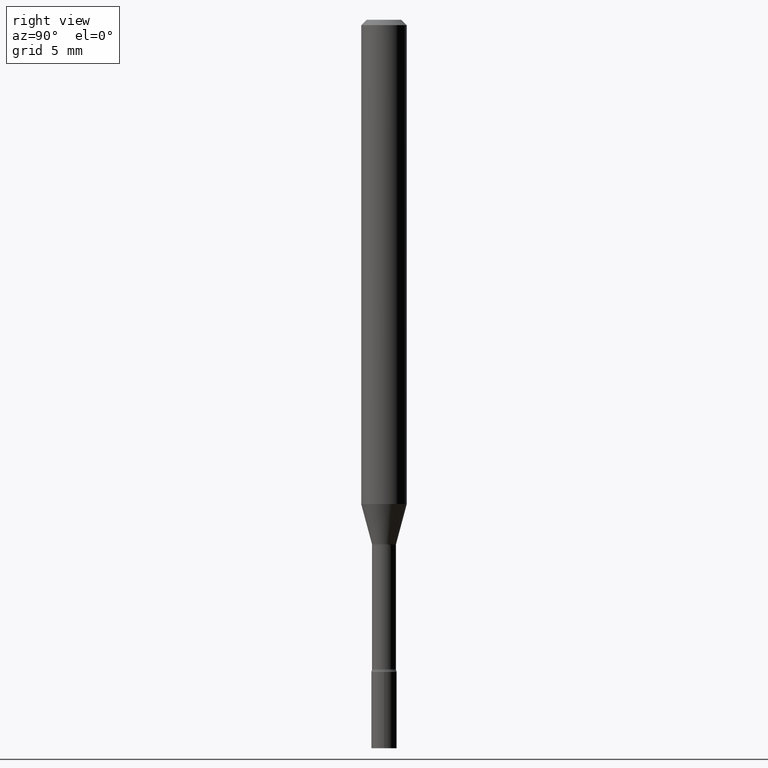
[diagram: clean part render]
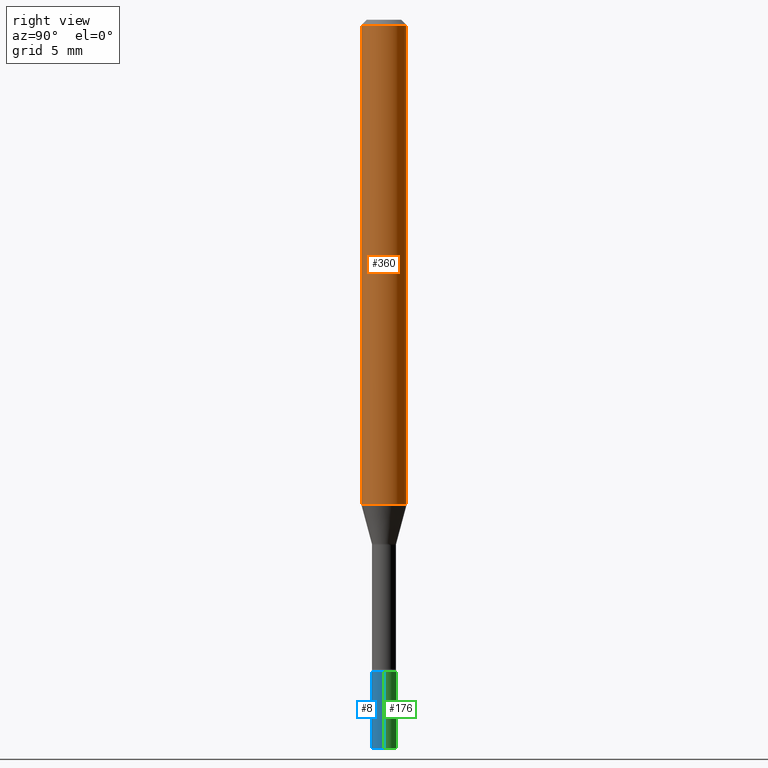
[diagram: same view with three faces highlighted in distinct colors, each labeled with its STEP entity id]
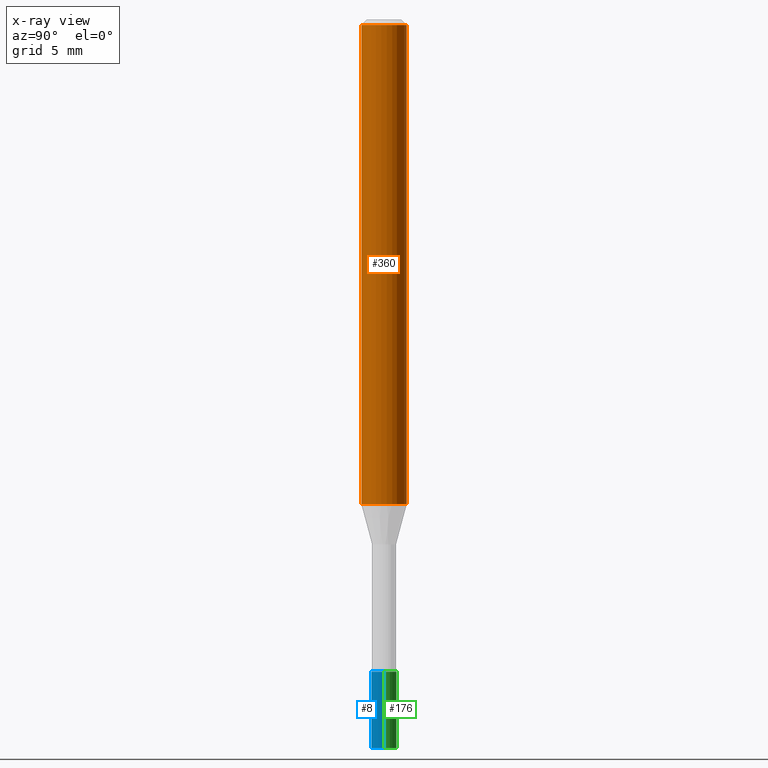
[diagram: x-ray of the same camera — body ghosted, the three highlighted faces saturated]
A machine part, right view with three faces highlighted in distinct colors.
The next image is the same camera in x-ray (body ghosted, the three faces saturated) — at least one of them is partly hidden behind the body in this view.
Their STEP definitions:

[orange] entity #360 — the highlighted cylindrical surface (edge-blend (fillet) strip) has radius 1.5875 mm, axis along (-0, 0, 1).
#19 = ORIENTED_EDGE ( 'NONE', *, *, #252, .T. ) ;
#44 = DIRECTION ( 'NONE',  ( -6.982962677686265922E-15, -1.000000000000000000, 4.370956789862821150E-15 ) ) ;
#52 = CARTESIAN_POINT ( 'NONE',  ( 0.000000000000000000, 0.000000000000000000, 0.000000000000000000 ) ) ;
#60 = ORIENTED_EDGE ( 'NONE', *, *, #254, .F. ) ;
#81 = LINE ( 'NONE', #139, #335 ) ;
#85 = DIRECTION ( 'NONE',  ( -2.445497550844091636E-29, 3.491440174855477289E-15, 1.000000000000000000 ) ) ;
#92 = VERTEX_POINT ( 'NONE', #294 ) ;
#105 = CARTESIAN_POINT ( 'NONE',  ( -4.364351673553912750E-16, -0.06250000000000005551, -0.01499999999999981209 ) ) ;
#106 = VERTEX_POINT ( 'NONE', #105 ) ;
#113 = EDGE_LOOP ( 'NONE', ( #19, #276, #60, #392 ) ) ;
#119 = DIRECTION ( 'NONE',  ( -2.445497550844091636E-29, 3.491440174855477683E-15, 1.000000000000000000 ) ) ;
#128 = CIRCLE ( 'NONE', #136, 0.06250000000000000000 ) ;
#136 = AXIS2_PLACEMENT_3D ( 'NONE', #364, #85, #245 ) ;
#139 = CARTESIAN_POINT ( 'NONE',  ( 4.440892098500625669E-16, 0.06250000000000000000, -2.182150109284673306E-16 ) ) ;
#157 = CYLINDRICAL_SURFACE ( 'NONE', #371, 0.06250000000000000000 ) ;
#161 = AXIS2_PLACEMENT_3D ( 'NONE', #205, #247, #44 ) ;
#179 = VECTOR ( 'NONE', #119, 39.37007874015748143 ) ;
#205 = CARTESIAN_POINT ( 'NONE',  ( 3.251365528373244956E-29, -4.641978980917113845E-15, -1.329531296095961546 ) ) ;
#245 = DIRECTION ( 'NONE',  ( -6.982962677686265922E-15, -1.000000000000000000, 3.483106191921935554E-15 ) ) ;
#247 = DIRECTION ( 'NONE',  ( -2.445497550844091636E-29, 3.491440174855477289E-15, 1.000000000000000000 ) ) ;
#248 = VERTEX_POINT ( 'NONE', #279 ) ;
#252 = EDGE_CURVE ( 'NONE', #499, #92, #422, .T. ) ;
#254 = EDGE_CURVE ( 'NONE', #106, #248, #128, .T. ) ;
#262 = DIRECTION ( 'NONE',  ( -6.982962677686265922E-15, -1.000000000000000000, 3.491440174855477289E-15 ) ) ;
#276 = ORIENTED_EDGE ( 'NONE', *, *, #313, .T. ) ;
#279 = CARTESIAN_POINT ( 'NONE',  ( 4.440892098500952553E-16, 0.06249999999999993755, -0.01500000000000024751 ) ) ;
#294 = CARTESIAN_POINT ( 'NONE',  ( 4.440892098500948609E-16, 0.06249999999999532319, -1.329531296095961768 ) ) ;
#313 = EDGE_CURVE ( 'NONE', #92, #248, #81, .T. ) ;
#320 = LINE ( 'NONE', #470, #179 ) ;
#335 = VECTOR ( 'NONE', #412, 39.37007874015748143 ) ;
#360 = ADVANCED_FACE ( 'NONE', ( #512 ), #157, .T. ) ;
#364 = CARTESIAN_POINT ( 'NONE',  ( 3.668246326266144706E-31, -5.237160262283227027E-17, -0.01500000000000003067 ) ) ;
#371 = AXIS2_PLACEMENT_3D ( 'NONE', #52, #468, #262 ) ;
#392 = ORIENTED_EDGE ( 'NONE', *, *, #397, .F. ) ;
#397 = EDGE_CURVE ( 'NONE', #499, #106, #320, .T. ) ;
#412 = DIRECTION ( 'NONE',  ( -2.445497550844091636E-29, 3.491440174855477683E-15, 1.000000000000000000 ) ) ;
#422 = CIRCLE ( 'NONE', #161, 0.06250000000000000000 ) ;
#468 = DIRECTION ( 'NONE',  ( -2.445497550844091636E-29, 3.491440174855477289E-15, 1.000000000000000000 ) ) ;
#470 = CARTESIAN_POINT ( 'NONE',  ( -4.364351673553916201E-16, -0.06250000000000000000, 2.182150109284673306E-16 ) ) ;
#484 = CARTESIAN_POINT ( 'NONE',  ( -4.364351673553592768E-16, -0.06250000000000467681, -1.329531296095961101 ) ) ;
#499 = VERTEX_POINT ( 'NONE', #484 ) ;
#512 = FACE_OUTER_BOUND ( 'NONE', #113, .T. ) ;

[blue] entity #8 — the highlighted cylindrical surface (edge-blend (fillet) strip) has radius 0.889 mm, axis along (-0, 0, 1).
#6 = CARTESIAN_POINT ( 'NONE',  ( -0.03500000000000000333, -6.367667179591725930E-15, -2.000000000000000000 ) ) ;
#8 = ADVANCED_FACE ( 'NONE', ( #228 ), #348, .T. ) ;
#30 = CARTESIAN_POINT ( 'NONE',  ( 0.03500000000000000333, -7.227366371405310342E-15, -2.000000000000000000 ) ) ;
#33 = VERTEX_POINT ( 'NONE', #30 ) ;
#45 = ORIENTED_EDGE ( 'NONE', *, *, #325, .T. ) ;
#47 = AXIS2_PLACEMENT_3D ( 'NONE', #516, #278, #436 ) ;
#48 = CARTESIAN_POINT ( 'NONE',  ( 0.03500000000000000333, -2.444036937190193250E-16, 1.706661871528577808E-30 ) ) ;
#56 = DIRECTION ( 'NONE',  ( -2.445468806185136597E-29, 3.491481338843145583E-15, 1.000000000000000000 ) ) ;
#73 = CARTESIAN_POINT ( 'NONE',  ( 4.377389163071394665E-29, -6.249751596529231267E-15, -1.790000000000000036 ) ) ;
#145 = ORIENTED_EDGE ( 'NONE', *, *, #449, .F. ) ;
#147 = ORIENTED_EDGE ( 'NONE', *, *, #271, .T. ) ;
#156 = CARTESIAN_POINT ( 'NONE',  ( 0.03500000000000000333, -6.494155290248250444E-15, -1.790000000000000036 ) ) ;
#164 = DIRECTION ( 'NONE',  ( -2.445468806185136597E-29, 3.491481338843145583E-15, 1.000000000000000000 ) ) ;
#170 = LINE ( 'NONE', #406, #453 ) ;
#210 = DIRECTION ( 'NONE',  ( -2.445468806185136877E-29, 3.491481338843145188E-15, 1.000000000000000000 ) ) ;
#228 = FACE_OUTER_BOUND ( 'NONE', #462, .T. ) ;
#256 = AXIS2_PLACEMENT_3D ( 'NONE', #381, #56, #379 ) ;
#258 = VERTEX_POINT ( 'NONE', #6 ) ;
#271 = EDGE_CURVE ( 'NONE', #33, #475, #331, .T. ) ;
#278 = DIRECTION ( 'NONE',  ( -2.445468806185136597E-29, 3.491481338843145583E-15, 1.000000000000000000 ) ) ;
#304 = CIRCLE ( 'NONE', #409, 0.03500000000000000333 ) ;
#306 = DIRECTION ( 'NONE',  ( 1.000000000000000000, -6.982962677686276966E-15, 0.000000000000000000 ) ) ;
#316 = ORIENTED_EDGE ( 'NONE', *, *, #501, .F. ) ;
#318 = DIRECTION ( 'NONE',  ( -2.445468806185136877E-29, 3.491481338843145188E-15, 1.000000000000000000 ) ) ;
#325 = EDGE_CURVE ( 'NONE', #258, #33, #450, .T. ) ;
#331 = LINE ( 'NONE', #48, #519 ) ;
#348 = CYLINDRICAL_SURFACE ( 'NONE', #47, 0.03500000000000000333 ) ;
#352 = CARTESIAN_POINT ( 'NONE',  ( -0.03500000000000000333, -6.367667179591725930E-15, -1.790000000000000036 ) ) ;
#379 = DIRECTION ( 'NONE',  ( 1.000000000000000000, -6.982962677686276966E-15, 0.000000000000000000 ) ) ;
#381 = CARTESIAN_POINT ( 'NONE',  ( 4.890937612370273194E-29, -6.982962677686291165E-15, -2.000000000000000000 ) ) ;
#406 = CARTESIAN_POINT ( 'NONE',  ( -0.03500000000000000333, 2.486899575160350887E-16, -1.721627281589217108E-30 ) ) ;
#409 = AXIS2_PLACEMENT_3D ( 'NONE', #73, #164, #306 ) ;
#436 = DIRECTION ( 'NONE',  ( 1.000000000000000000, -6.982962677686265922E-15, 4.876176775795936353E-29 ) ) ;
#449 = EDGE_CURVE ( 'NONE', #465, #475, #304, .T. ) ;
#450 = CIRCLE ( 'NONE', #256, 0.03500000000000000333 ) ;
#453 = VECTOR ( 'NONE', #210, 39.37007874015748143 ) ;
#462 = EDGE_LOOP ( 'NONE', ( #316, #45, #147, #145 ) ) ;
#465 = VERTEX_POINT ( 'NONE', #352 ) ;
#475 = VERTEX_POINT ( 'NONE', #156 ) ;
#501 = EDGE_CURVE ( 'NONE', #258, #465, #170, .T. ) ;
#516 = CARTESIAN_POINT ( 'NONE',  ( 0.000000000000000000, 0.000000000000000000, 0.000000000000000000 ) ) ;
#519 = VECTOR ( 'NONE', #318, 39.37007874015748143 ) ;

[green] entity #176 — the highlighted cylindrical surface (edge-blend (fillet) strip) has radius 0.889 mm, axis along (-0, 0, 1).
#4 = DIRECTION ( 'NONE',  ( 1.000000000000000000, -6.982962677686276966E-15, 0.000000000000000000 ) ) ;
#6 = CARTESIAN_POINT ( 'NONE',  ( -0.03500000000000000333, -6.367667179591725930E-15, -2.000000000000000000 ) ) ;
#21 = CIRCLE ( 'NONE', #96, 0.03500000000000000333 ) ;
#27 = CARTESIAN_POINT ( 'NONE',  ( 0.000000000000000000, 0.000000000000000000, 0.000000000000000000 ) ) ;
#30 = CARTESIAN_POINT ( 'NONE',  ( 0.03500000000000000333, -7.227366371405310342E-15, -2.000000000000000000 ) ) ;
#33 = VERTEX_POINT ( 'NONE', #30 ) ;
#48 = CARTESIAN_POINT ( 'NONE',  ( 0.03500000000000000333, -2.444036937190193250E-16, 1.706661871528577808E-30 ) ) ;
#66 = FACE_OUTER_BOUND ( 'NONE', #471, .T. ) ;
#96 = AXIS2_PLACEMENT_3D ( 'NONE', #473, #435, #4 ) ;
#116 = ORIENTED_EDGE ( 'NONE', *, *, #482, .F. ) ;
#118 = DIRECTION ( 'NONE',  ( -2.445468806185136597E-29, 3.491481338843145583E-15, 1.000000000000000000 ) ) ;
#156 = CARTESIAN_POINT ( 'NONE',  ( 0.03500000000000000333, -6.494155290248250444E-15, -1.790000000000000036 ) ) ;
#159 = DIRECTION ( 'NONE',  ( 1.000000000000000000, -6.982962677686276966E-15, 0.000000000000000000 ) ) ;
#170 = LINE ( 'NONE', #406, #453 ) ;
#176 = ADVANCED_FACE ( 'NONE', ( #66 ), #390, .T. ) ;
#210 = DIRECTION ( 'NONE',  ( -2.445468806185136877E-29, 3.491481338843145188E-15, 1.000000000000000000 ) ) ;
#219 = EDGE_CURVE ( 'NONE', #33, #258, #21, .T. ) ;
#258 = VERTEX_POINT ( 'NONE', #6 ) ;
#264 = ORIENTED_EDGE ( 'NONE', *, *, #271, .F. ) ;
#271 = EDGE_CURVE ( 'NONE', #33, #475, #331, .T. ) ;
#283 = AXIS2_PLACEMENT_3D ( 'NONE', #27, #467, #343 ) ;
#302 = ORIENTED_EDGE ( 'NONE', *, *, #501, .T. ) ;
#310 = ORIENTED_EDGE ( 'NONE', *, *, #219, .T. ) ;
#318 = DIRECTION ( 'NONE',  ( -2.445468806185136877E-29, 3.491481338843145188E-15, 1.000000000000000000 ) ) ;
#331 = LINE ( 'NONE', #48, #519 ) ;
#343 = DIRECTION ( 'NONE',  ( 1.000000000000000000, -6.982962677686265922E-15, 4.876176775795936353E-29 ) ) ;
#352 = CARTESIAN_POINT ( 'NONE',  ( -0.03500000000000000333, -6.367667179591725930E-15, -1.790000000000000036 ) ) ;
#390 = CYLINDRICAL_SURFACE ( 'NONE', #283, 0.03500000000000000333 ) ;
#406 = CARTESIAN_POINT ( 'NONE',  ( -0.03500000000000000333, 2.486899575160350887E-16, -1.721627281589217108E-30 ) ) ;
#435 = DIRECTION ( 'NONE',  ( -2.445468806185136597E-29, 3.491481338843145583E-15, 1.000000000000000000 ) ) ;
#440 = AXIS2_PLACEMENT_3D ( 'NONE', #469, #118, #159 ) ;
#453 = VECTOR ( 'NONE', #210, 39.37007874015748143 ) ;
#465 = VERTEX_POINT ( 'NONE', #352 ) ;
#467 = DIRECTION ( 'NONE',  ( -2.445468806185136597E-29, 3.491481338843145583E-15, 1.000000000000000000 ) ) ;
#469 = CARTESIAN_POINT ( 'NONE',  ( 4.377389163071394665E-29, -6.249751596529231267E-15, -1.790000000000000036 ) ) ;
#471 = EDGE_LOOP ( 'NONE', ( #310, #302, #116, #264 ) ) ;
#473 = CARTESIAN_POINT ( 'NONE',  ( 4.890937612370273194E-29, -6.982962677686291165E-15, -2.000000000000000000 ) ) ;
#474 = CIRCLE ( 'NONE', #440, 0.03500000000000000333 ) ;
#475 = VERTEX_POINT ( 'NONE', #156 ) ;
#482 = EDGE_CURVE ( 'NONE', #475, #465, #474, .T. ) ;
#501 = EDGE_CURVE ( 'NONE', #258, #465, #170, .T. ) ;
#519 = VECTOR ( 'NONE', #318, 39.37007874015748143 ) ;